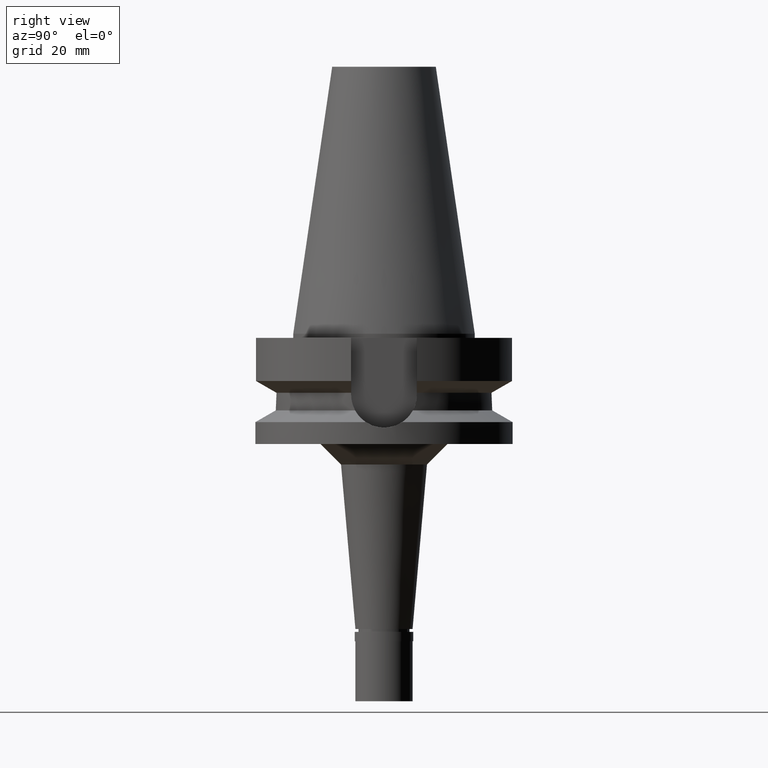
[diagram: clean part render]
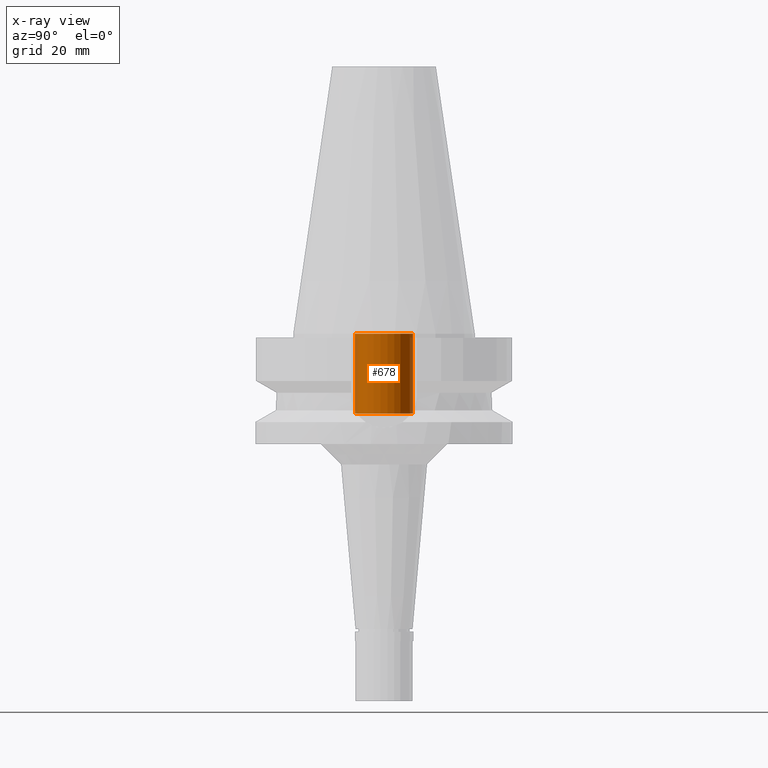
[diagram: x-ray — body ghosted, one internal face saturated and labeled with its STEP entity id]
A machine part, right view, then the same camera in x-ray: the body is ghosted and one INTERNAL B-rep face — a face not visible from any outside direction — is saturated and labeled: STEP entity #678.
In plain terms, the highlighted cylindrical surface (edge-blend (fillet) strip) has radius 7.1 mm, axis along (0, 0, -1).
Its self-contained STEP definition (entity closure, byte-faithful):
#121 = LINE ( 'NONE', #1037, #2876 ) ;
#238 = ORIENTED_EDGE ( 'NONE', *, *, #1607, .T. ) ;
#310 = CYLINDRICAL_SURFACE ( 'NONE', #718, 7.100000000000000533 ) ;
#349 = DIRECTION ( 'NONE',  ( 0.0000000000000000000, -1.000000000000000000, 0.0000000000000000000 ) ) ;
#461 = ORIENTED_EDGE ( 'NONE', *, *, #706, .T. ) ;
#494 = VERTEX_POINT ( 'NONE', #951 ) ;
#531 = ORIENTED_EDGE ( 'NONE', *, *, #2846, .F. ) ;
#678 = ADVANCED_FACE ( 'NONE', ( #2128 ), #310, .F. ) ;
#706 = EDGE_CURVE ( 'NONE', #494, #1469, #1479, .T. ) ;
#718 = AXIS2_PLACEMENT_3D ( 'NONE', #2804, #1919, #1667 ) ;
#865 = CIRCLE ( 'NONE', #1157, 7.100000000000000533 ) ;
#951 = CARTESIAN_POINT ( 'NONE',  ( 0.0000000000000000000, -7.100000000000000533, 1.421085471519999938E-13 ) ) ;
#998 = VERTEX_POINT ( 'NONE', #2906 ) ;
#1037 = CARTESIAN_POINT ( 'NONE',  ( 0.0000000000000000000, 7.100000000000000533, -19.59999999999999787 ) ) ;
#1053 = DIRECTION ( 'NONE',  ( 0.0000000000000000000, 0.0000000000000000000, 1.000000000000000000 ) ) ;
#1101 = VERTEX_POINT ( 'NONE', #2281 ) ;
#1108 = DIRECTION ( 'NONE',  ( 0.0000000000000000000, 1.000000000000000000, 0.0000000000000000000 ) ) ;
#1157 = AXIS2_PLACEMENT_3D ( 'NONE', #2734, #1806, #1108 ) ;
#1338 = EDGE_LOOP ( 'NONE', ( #238, #1717, #461, #531 ) ) ;
#1339 = DIRECTION ( 'NONE',  ( 0.0000000000000000000, 0.0000000000000000000, 1.000000000000000000 ) ) ;
#1434 = AXIS2_PLACEMENT_3D ( 'NONE', #2220, #2441, #349 ) ;
#1469 = VERTEX_POINT ( 'NONE', #2173 ) ;
#1479 = CIRCLE ( 'NONE', #1434, 7.100000000000000533 ) ;
#1607 = EDGE_CURVE ( 'NONE', #998, #1101, #865, .T. ) ;
#1667 = DIRECTION ( 'NONE',  ( 0.0000000000000000000, -1.000000000000000000, 0.0000000000000000000 ) ) ;
#1717 = ORIENTED_EDGE ( 'NONE', *, *, #2493, .T. ) ;
#1779 = VECTOR ( 'NONE', #1339, 1000.000000000000000 ) ;
#1806 = DIRECTION ( 'NONE',  ( 0.0000000000000000000, 0.0000000000000000000, -1.000000000000000000 ) ) ;
#1919 = DIRECTION ( 'NONE',  ( 0.0000000000000000000, 0.0000000000000000000, -1.000000000000000000 ) ) ;
#2128 = FACE_OUTER_BOUND ( 'NONE', #1338, .T. ) ;
#2173 = CARTESIAN_POINT ( 'NONE',  ( 0.0000000000000000000, 7.100000000000000533, 1.421085471519999938E-13 ) ) ;
#2220 = CARTESIAN_POINT ( 'NONE',  ( 0.0000000000000000000, 2.118271568485000005E-14, 1.705302565823999875E-13 ) ) ;
#2281 = CARTESIAN_POINT ( 'NONE',  ( 0.0000000000000000000, -7.100000000000000533, -19.59999999999999787 ) ) ;
#2441 = DIRECTION ( 'NONE',  ( 0.0000000000000000000, 0.0000000000000000000, 1.000000000000000000 ) ) ;
#2462 = LINE ( 'NONE', #2929, #1779 ) ;
#2493 = EDGE_CURVE ( 'NONE', #1101, #494, #2462, .T. ) ;
#2734 = CARTESIAN_POINT ( 'NONE',  ( 0.0000000000000000000, 2.118271568485000005E-14, -19.59999999999999787 ) ) ;
#2804 = CARTESIAN_POINT ( 'NONE',  ( 0.0000000000000000000, 2.118271568485000005E-14, 72.96999999999999886 ) ) ;
#2846 = EDGE_CURVE ( 'NONE', #998, #1469, #121, .T. ) ;
#2876 = VECTOR ( 'NONE', #1053, 1000.000000000000000 ) ;
#2906 = CARTESIAN_POINT ( 'NONE',  ( 0.0000000000000000000, 7.100000000000000533, -19.59999999999999787 ) ) ;
#2929 = CARTESIAN_POINT ( 'NONE',  ( 0.0000000000000000000, -7.100000000000000533, -19.59999999999999787 ) ) ;